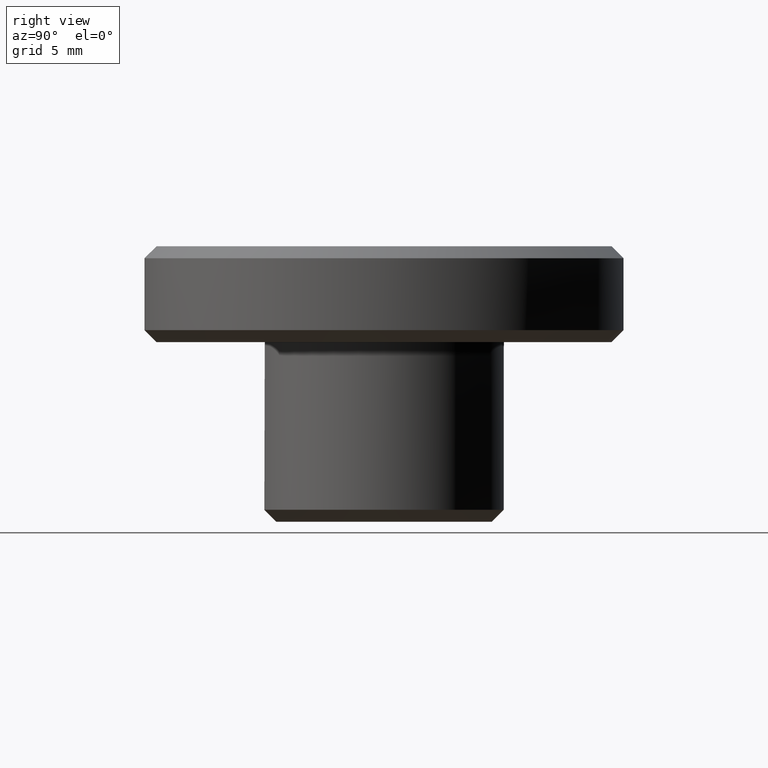
[diagram: clean part render]
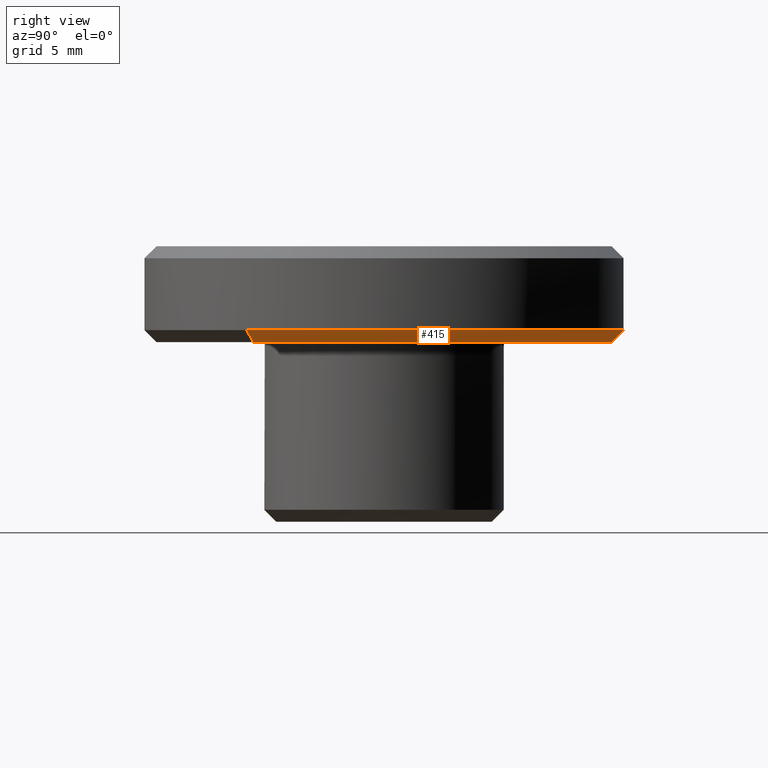
[diagram: same view with one face highlighted and labeled with its STEP entity id]
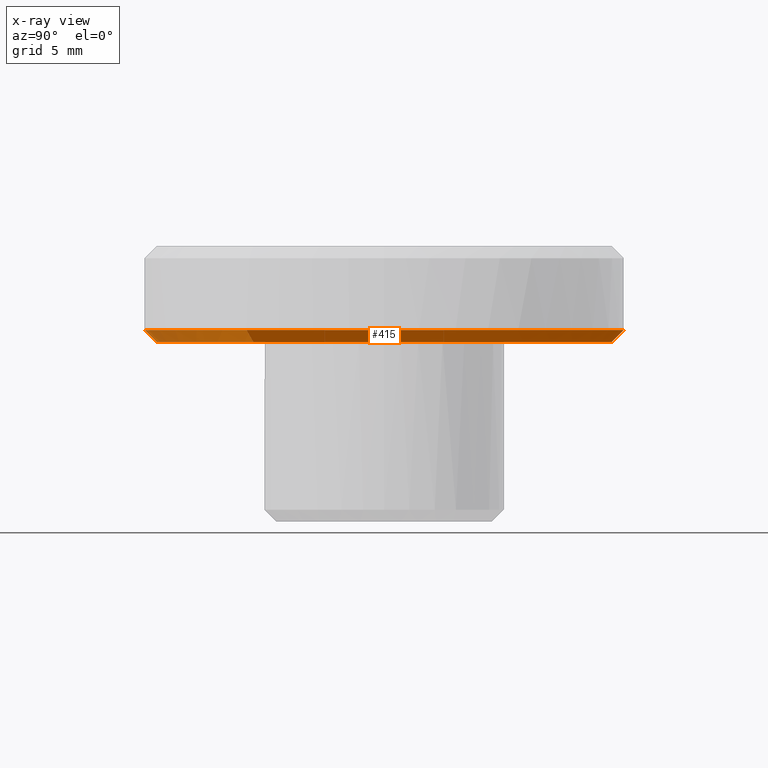
[diagram: x-ray of the same camera — body ghosted, the highlighted face saturated]
A machine part, right view. The second image highlights one B-rep face of the part: STEP entity #415.
The next image is the same camera in x-ray: the body ghosted, the highlighted face saturated — about 21% of this face is hidden behind the body in this view.
In plain terms, the highlighted face is a freeform B-spline surface patch.
Its self-contained STEP definition (entity closure, byte-faithful):
#260=CARTESIAN_POINT('',(7.768992244344032,-5.445678631476727,7.487499999999999));
#261=CARTESIAN_POINT('',(9.513663739761999,-2.956670330750998,7.487499999999999));
#262=CARTESIAN_POINT('',(9.487138745071322,0.082793005540822,7.487499999999999));
#263=CARTESIAN_POINT('',(9.404345739530500,9.569931750612144,7.487499999999999));
#264=CARTESIAN_POINT('',(-0.082793005540822,9.487138745071322,7.487499999999999));
#265=CARTESIAN_POINT('',(-9.569931750612144,9.404345739530500,7.487499999999999));
#266=CARTESIAN_POINT('',(-9.487138745071322,-0.082793005540822,7.487499999999999));
#267=CARTESIAN_POINT('',(-9.404345739530500,-9.569931750612144,7.487499999999999));
#268=CARTESIAN_POINT('',(0.082793005540822,-9.487138745071322,7.487499999999999));
#269=CARTESIAN_POINT('',(8.199152849177397,-5.747199902211622,8.012812500000003));
#270=CARTESIAN_POINT('',(10.040424897421362,-3.120377933715158,8.012812500000001));
#271=CARTESIAN_POINT('',(10.012431242780909,0.087377163719811,8.012812500000001));
#272=CARTESIAN_POINT('',(9.925054079061102,10.099808406500724,8.012812500000001));
#273=CARTESIAN_POINT('',(-0.087377163719811,10.012431242780909,8.012812500000001));
#274=CARTESIAN_POINT('',(-10.099808406500724,9.925054079061102,8.012812500000001));
#275=CARTESIAN_POINT('',(-10.012431242780909,-0.087377163719811,8.012812500000001));
#276=CARTESIAN_POINT('',(-9.925054079061102,-10.099808406500724,8.012812500000001));
#277=CARTESIAN_POINT('',(0.087377163719811,-10.012431242780909,8.012812500000001));
#285=(BOUNDED_SURFACE()B_SPLINE_SURFACE(2,1,((#260,#269),(#261,#270),(#262,#271),(#263,#272),(#264,#273),(#265,#274),(#266,#275),(#267,#276),(#268,#277)),.UNSPECIFIED.,.F.,.F.,.U.)B_SPLINE_SURFACE_WITH_KNOTS((3,2,2,2,3),(2,2),(0.0,6.635908375998130,23.225679315993460,39.815450255988793,56.405221195984112),(0.0,1.0),.UNSPECIFIED.)GEOMETRIC_REPRESENTATION_ITEM()RATIONAL_B_SPLINE_SURFACE(((0.859411254969543,0.859411254969543),(0.882842712474619,0.882842712474619),(1.0,1.0),(0.707106781186548,0.707106781186548),(1.0,1.0),(0.707106781186548,0.707106781186548),(1.0,1.0),(0.707106781186548,0.707106781186548),(1.0,1.0)))REPRESENTATION_ITEM('')SURFACE());
#286=CARTESIAN_POINT('',(9.500000000000000,0.0,7.500000000000000));
#287=VERTEX_POINT('',#286);
#288=CARTESIAN_POINT('',(7.779228070752899,-5.452853438632856,7.500000000000004));
#289=VERTEX_POINT('',#288);
#290=CARTESIAN_POINT('',(9.500000000000000,0.0,7.500000000000000));
#291=CARTESIAN_POINT('',(9.500000000000002,-2.997941080174386,7.500000000000001));
#292=CARTESIAN_POINT('',(7.779228070752899,-5.452853438632856,7.500000000000004));
#300=(BOUNDED_CURVE()B_SPLINE_CURVE(2,(#290,#291,#292),.UNSPECIFIED.,.F.,.U.)B_SPLINE_CURVE_WITH_KNOTS((3,3),(0.0,0.098673726202874),.UNSPECIFIED.)CURVE()GEOMETRIC_REPRESENTATION_ITEM()RATIONAL_B_SPLINE_CURVE((1.0,0.884396538880492,0.860049271925871))REPRESENTATION_ITEM(''));
#301=EDGE_CURVE('',#287,#289,#300,.T.);
#302=ORIENTED_EDGE('',*,*,#301,.F.);
#303=CARTESIAN_POINT('',(-9.500000000000000,0.0,7.500000000000000));
#304=VERTEX_POINT('',#303);
#305=CARTESIAN_POINT('',(-9.500000000000000,0.0,7.500000000000000));
#306=CARTESIAN_POINT('',(-9.500000000000000,9.500000000000000,7.500000000000000));
#307=CARTESIAN_POINT('',(0.0,9.500000000000000,7.500000000000000));
#308=CARTESIAN_POINT('',(9.500000000000000,9.500000000000000,7.500000000000000));
#309=CARTESIAN_POINT('',(9.500000000000000,0.0,7.500000000000000));
#317=(BOUNDED_CURVE()B_SPLINE_CURVE(2,(#305,#306,#307,#308,#309),.UNSPECIFIED.,.F.,.U.)B_SPLINE_CURVE_WITH_KNOTS((3,2,3),(0.500000000000000,0.750000000000000,1.0),.UNSPECIFIED.)CURVE()GEOMETRIC_REPRESENTATION_ITEM()RATIONAL_B_SPLINE_CURVE((1.0,0.707106781186548,1.0,0.707106781186548,1.0))REPRESENTATION_ITEM(''));
#318=EDGE_CURVE('',#304,#287,#317,.T.);
#319=ORIENTED_EDGE('',*,*,#318,.F.);
#320=CARTESIAN_POINT('',(0.082902087252670,-9.499638269111934,7.500000000002467));
#321=VERTEX_POINT('',#320);
#322=CARTESIAN_POINT('',(0.082902087252670,-9.499638269111934,7.500000000002467));
#323=CARTESIAN_POINT('',(0.041451832814762,-9.499999999999998,7.500000000000000));
#324=CARTESIAN_POINT('',(0.0,-9.500000000000000,7.500000000000000));
#325=CARTESIAN_POINT('',(-9.500000000000000,-9.500000000000000,7.500000000000000));
#326=CARTESIAN_POINT('',(-9.500000000000000,0.0,7.500000000000000));
#334=(BOUNDED_CURVE()B_SPLINE_CURVE(2,(#322,#323,#324,#325,#326),.UNSPECIFIED.,.F.,.U.)B_SPLINE_CURVE_WITH_KNOTS((3,2,3),(0.248460105664342,0.250000000000000,0.500000000000000),.UNSPECIFIED.)CURVE()GEOMETRIC_REPRESENTATION_ITEM()RATIONAL_B_SPLINE_CURVE((0.996414028098853,0.998195901565586,1.0,0.707106781186548,1.0))REPRESENTATION_ITEM(''));
#335=EDGE_CURVE('',#321,#304,#334,.T.);
#336=ORIENTED_EDGE('',*,*,#335,.F.);
#337=CARTESIAN_POINT('',(0.087265354984034,-9.999619230641734,8.000000000000055));
#338=VERTEX_POINT('',#337);
#339=CARTESIAN_POINT('',(0.082902087252670,-9.499638269111934,7.500000000002467));
#340=CARTESIAN_POINT('',(0.087265354984034,-9.999619230641734,8.000000000000055));
#341=QUASI_UNIFORM_CURVE('',1,(#339,#340),.UNSPECIFIED.,.F.,.U.);
#342=EDGE_CURVE('',#321,#338,#341,.T.);
#343=ORIENTED_EDGE('',*,*,#342,.T.);
#344=CARTESIAN_POINT('',(-10.0,0.0,8.0));
#345=VERTEX_POINT('',#344);
#346=CARTESIAN_POINT('',(-10.0,0.0,8.0));
#347=CARTESIAN_POINT('',(-10.000000000000002,-10.000000000000002,8.0));
#348=CARTESIAN_POINT('',(0.0,-10.0,8.0));
#349=CARTESIAN_POINT('',(0.043633508207314,-10.000000000000002,8.0));
#350=CARTESIAN_POINT('',(0.087265354984034,-9.999619230641734,8.000000000000055));
#358=(BOUNDED_CURVE()B_SPLINE_CURVE(2,(#346,#347,#348,#349,#350),.UNSPECIFIED.,.F.,.U.)B_SPLINE_CURVE_WITH_KNOTS((3,2,3),(0.0,0.250000000000000,0.251539894334998),.UNSPECIFIED.)CURVE()GEOMETRIC_REPRESENTATION_ITEM()RATIONAL_B_SPLINE_CURVE((1.0,0.707106781186548,1.0,0.998195901566360,0.996414028100381))REPRESENTATION_ITEM(''));
#359=EDGE_CURVE('',#345,#338,#358,.T.);
#360=ORIENTED_EDGE('',*,*,#359,.F.);
#361=CARTESIAN_POINT('',(-0.087258337325771,9.999619291878959,8.0));
#362=VERTEX_POINT('',#361);
#363=CARTESIAN_POINT('',(-0.087258337325771,9.999619291878959,8.0));
#364=CARTESIAN_POINT('',(-10.0,9.913119063164983,8.0));
#365=CARTESIAN_POINT('',(-10.0,0.0,8.0));
#373=(BOUNDED_CURVE()B_SPLINE_CURVE(2,(#363,#364,#365),.UNSPECIFIED.,.F.,.U.)B_SPLINE_CURVE_WITH_KNOTS((3,3),(0.751539770719286,1.0),.UNSPECIFIED.)CURVE()GEOMETRIC_REPRESENTATION_ITEM()RATIONAL_B_SPLINE_CURVE((0.996414314181917,0.708910734795373,1.0))REPRESENTATION_ITEM(''));
#374=EDGE_CURVE('',#362,#345,#373,.T.);
#375=ORIENTED_EDGE('',*,*,#374,.F.);
#376=CARTESIAN_POINT('',(10.0,0.0,8.0));
#377=VERTEX_POINT('',#376);
#378=CARTESIAN_POINT('',(10.0,0.0,8.0));
#379=CARTESIAN_POINT('',(10.000000000000002,10.000000000000002,8.0));
#380=CARTESIAN_POINT('',(0.0,10.0,8.0));
#381=CARTESIAN_POINT('',(-0.043629999177642,10.000000000000002,8.0));
#382=CARTESIAN_POINT('',(-0.087258337325771,9.999619291878959,8.0));
#390=(BOUNDED_CURVE()B_SPLINE_CURVE(2,(#378,#379,#380,#381,#382),.UNSPECIFIED.,.F.,.U.)B_SPLINE_CURVE_WITH_KNOTS((3,2,3),(0.500000000000000,0.750000000000000,0.751539770719286),.UNSPECIFIED.)CURVE()GEOMETRIC_REPRESENTATION_ITEM()RATIONAL_B_SPLINE_CURVE((1.0,0.707106781186548,1.0,0.998196046391175,0.996414314181917))REPRESENTATION_ITEM(''));
#391=EDGE_CURVE('',#377,#362,#390,.T.);
#392=ORIENTED_EDGE('',*,*,#391,.F.);
#393=CARTESIAN_POINT('',(8.188661127107629,-5.739845724877739,8.000000000000071));
#394=VERTEX_POINT('',#393);
#395=CARTESIAN_POINT('',(8.188661127107629,-5.739845724877739,8.000000000000071));
#396=CARTESIAN_POINT('',(10.0,-3.155727452816520,8.0));
#397=CARTESIAN_POINT('',(10.0,0.0,8.0));
#405=(BOUNDED_CURVE()B_SPLINE_CURVE(2,(#395,#396,#397),.UNSPECIFIED.,.F.,.U.)B_SPLINE_CURVE_WITH_KNOTS((3,3),(0.401326273797088,0.500000000000000),.UNSPECIFIED.)CURVE()GEOMETRIC_REPRESENTATION_ITEM()RATIONAL_B_SPLINE_CURVE((0.860049271925853,0.884396538880448,1.0))REPRESENTATION_ITEM(''));
#406=EDGE_CURVE('',#394,#377,#405,.T.);
#407=ORIENTED_EDGE('',*,*,#406,.F.);
#408=CARTESIAN_POINT('',(7.779228070752899,-5.452853438632856,7.500000000000004));
#409=CARTESIAN_POINT('',(8.188661127107629,-5.739845724877739,8.000000000000071));
#410=QUASI_UNIFORM_CURVE('',1,(#408,#409),.UNSPECIFIED.,.F.,.U.);
#411=EDGE_CURVE('',#289,#394,#410,.T.);
#412=ORIENTED_EDGE('',*,*,#411,.F.);
#413=EDGE_LOOP('',(#302,#319,#336,#343,#360,#375,#392,#407,#412));
#414=FACE_OUTER_BOUND('',#413,.T.);
#415=ADVANCED_FACE('',(#414),#285,.T.);